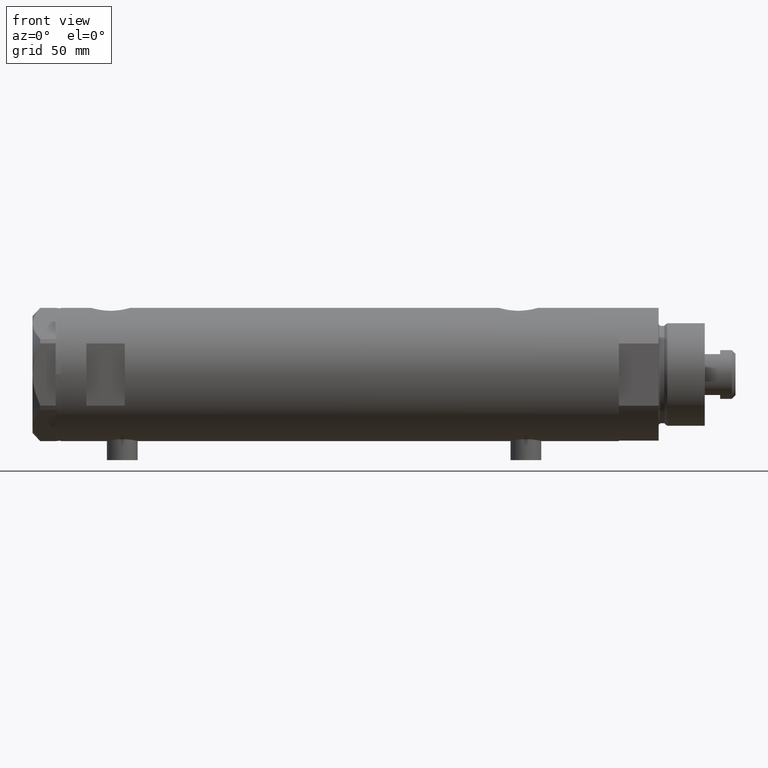
[diagram: clean part render]
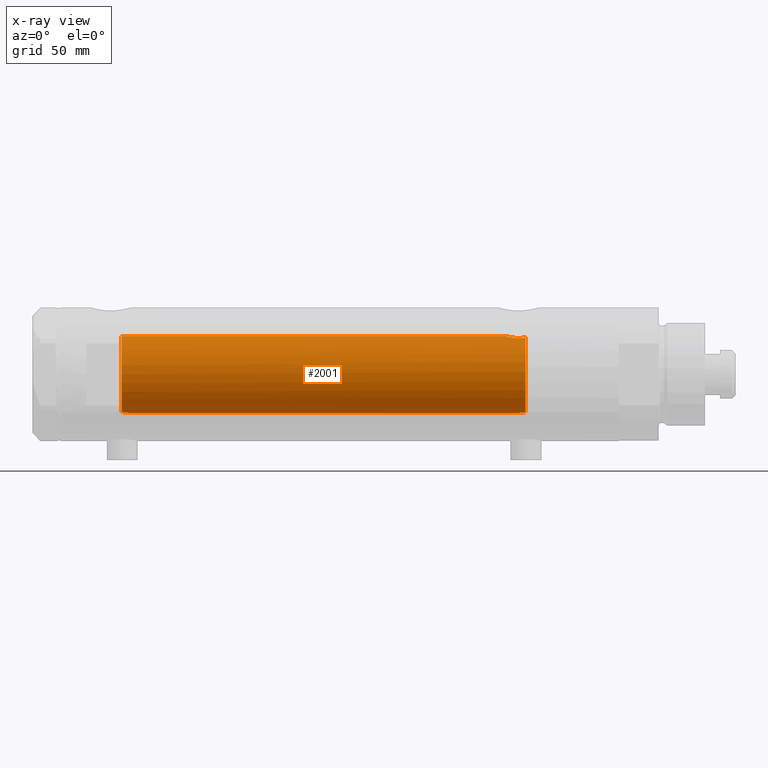
[diagram: x-ray — body ghosted, one internal face saturated and labeled with its STEP entity id]
A machine part, front view, then the same camera in x-ray: the body is ghosted and one INTERNAL B-rep face — a face not visible from any outside direction — is saturated and labeled: STEP entity #2001.
In plain terms, the highlighted cylindrical surface (partial cylindrical patch) has radius 15 mm, axis along (1, 0, -0).
Its self-contained STEP definition (entity closure, byte-faithful):
#39 = VERTEX_POINT ( 'NONE', #2394 ) ;
#60 = CARTESIAN_POINT ( 'NONE',  ( -15.00000000000000000, 0.000000000000000000, -70.15000000000000568 ) ) ;
#69 = CARTESIAN_POINT ( 'NONE',  ( -14.79155164274526157, -2.491987158875416775, 85.15000000000000568 ) ) ;
#105 = CARTESIAN_POINT ( 'NONE',  ( -14.95581892566389470, -1.161262481484110154, 82.72937042154403287 ) ) ;
#111 = VERTEX_POINT ( 'NONE', #60 ) ;
#131 = ORIENTED_EDGE ( 'NONE', *, *, #1992, .F. ) ;
#179 = B_SPLINE_CURVE_WITH_KNOTS ( 'NONE', 3,
 ( #4198, #2624, #3410, #5015, #2674, #4276, #3882, #292, #1899, #3019, #3492, #4626, #1505, #1845, #3436, #2808, #4773, #3172, #3226, #4430, #3130, #3589, #4332, #1564, #4824, #1183, #1231, #5175, #1924, #741 ),
 .UNSPECIFIED., .F., .F.,
 ( 4, 2, 2, 2, 2, 2, 2, 2, 2, 2, 2, 2, 2, 2, 4 ),
 ( 0.004672505804584295430, 0.005337629501999315365, 0.006002753199414335300, 0.006667876896829355235, 0.007333000594244375170, 0.007998124291659395105, 0.008663247989074415040, 0.009328371686489433240, 0.009993495383904454910, 0.01132374277873445662, 0.01265399017356445832, 0.01331911387097945050, 0.01398423756839444268, 0.01464936126580943312, 0.01531448496322442530 ),
 .UNSPECIFIED. ) ;
#212 = CARTESIAN_POINT ( 'NONE',  ( -14.91288509639097271, -1.618377549727019415, -70.73790984008952876 ) ) ;
#232 = CARTESIAN_POINT ( 'NONE',  ( 0.000000000000000000, 0.000000000000000000, 85.15000000000000568 ) ) ;
#239 = EDGE_CURVE ( 'NONE', #111, #4530, #1813, .T. ) ;
#279 = CARTESIAN_POINT ( 'NONE',  ( 14.92029983160078466, -1.555365312915180098, 84.83609703141414116 ) ) ;
#292 = CARTESIAN_POINT ( 'NONE',  ( 14.20819413761016037, -4.809312895991457282, -70.51713251522167525 ) ) ;
#369 = ORIENTED_EDGE ( 'NONE', *, *, #239, .F. ) ;
#423 = CARTESIAN_POINT ( 'NONE',  ( 14.82638779339053769, -2.275571356824481750, 85.15000000000000568 ) ) ;
#426 = AXIS2_PLACEMENT_3D ( 'NONE', #3646, #2464, #4516 ) ;
#562 = CARTESIAN_POINT ( 'NONE',  ( -14.83575030094399771, -2.214690538106026452, -71.47938890130201628 ) ) ;
#583 = CARTESIAN_POINT ( 'NONE',  ( -14.98749134158486740, -0.6320459414166045287, -70.22599747929442060 ) ) ;
#741 = CARTESIAN_POINT ( 'NONE',  ( 15.00000000000000000, 5.959273473684245944E-16, -64.88500000000000512 ) ) ;
#763 = VECTOR ( 'NONE', #2367, 1000.000000000000000 ) ;
#773 = CARTESIAN_POINT ( 'NONE',  ( 15.00000000000000000, 1.836970198721029589E-15, 108.9499999999999886 ) ) ;
#780 = VERTEX_POINT ( 'NONE', #3903 ) ;
#871 = CARTESIAN_POINT ( 'NONE',  ( -14.90147761301467710, -1.720422196468680776, 83.12794212931564175 ) ) ;
#894 = FACE_OUTER_BOUND ( 'NONE', #2984, .T. ) ;
#919 = CARTESIAN_POINT ( 'NONE',  ( -14.79723843696374885, -2.458094276708257642, 84.46231574989086255 ) ) ;
#1003 = CARTESIAN_POINT ( 'NONE',  ( -14.79053751558745589, -2.497999199359367761, -72.54999999999999716 ) ) ;
#1051 = DIRECTION ( 'NONE',  ( 0.000000000000000000, 0.000000000000000000, 1.000000000000000000 ) ) ;
#1062 = CARTESIAN_POINT ( 'NONE',  ( 15.00000000000000000, 0.000000000000000000, 84.58500000000000796 ) ) ;
#1183 = CARTESIAN_POINT ( 'NONE',  ( 14.96064712090283955, -1.106639041422192049, -65.00738179736373468 ) ) ;
#1194 = EDGE_CURVE ( 'NONE', #39, #111, #4222, .T. ) ;
#1211 = CARTESIAN_POINT ( 'NONE',  ( -14.94313933514151493, -1.312299271472202600, 82.81526966946924517 ) ) ;
#1231 = CARTESIAN_POINT ( 'NONE',  ( 14.97537530859972321, -0.8874117095427768165, -64.96137464055831856 ) ) ;
#1258 = CARTESIAN_POINT ( 'NONE',  ( -14.99999999999999822, -0.1716226368084284859, 82.45000000000001705 ) ) ;
#1292 = ORIENTED_EDGE ( 'NONE', *, *, #3297, .F. ) ;
#1381 = CARTESIAN_POINT ( 'NONE',  ( -14.99740058099026108, -0.3199290537848277771, -70.16546469274585718 ) ) ;
#1397 = DIRECTION ( 'NONE',  ( -0.000000000000000000, -0.000000000000000000, -1.000000000000000000 ) ) ;
#1402 = CARTESIAN_POINT ( 'NONE',  ( -14.80570803900864085, -2.410056876876593979, -71.91354637206102041 ) ) ;
#1439 = AXIS2_PLACEMENT_3D ( 'NONE', #3111, #4710, #1515 ) ;
#1505 = CARTESIAN_POINT ( 'NONE',  ( 14.20926245015525957, -4.806160851464704287, -68.96377327795615031 ) ) ;
#1515 = DIRECTION ( 'NONE',  ( -1.000000000000000000, 0.000000000000000000, 0.000000000000000000 ) ) ;
#1564 = CARTESIAN_POINT ( 'NONE',  ( 14.90017778876745247, -1.739641523727897710, -65.20130925695124802 ) ) ;
#1598 = VECTOR ( 'NONE', #1397, 1000.000000000000000 ) ;
#1611 = CARTESIAN_POINT ( 'NONE',  ( -14.78989771875220072, -2.501882951377193187, 84.80631597653685105 ) ) ;
#1748 = CARTESIAN_POINT ( 'NONE',  ( -14.92627313122706134, -1.491421694539947440, -70.63730514635739155 ) ) ;
#1813 = B_SPLINE_CURVE_WITH_KNOTS ( 'NONE', 3,
 ( #4524, #3809, #1381, #583, #3370, #3731, #2120, #1748, #212, #2995, #3710, #5018, #562, #1402, #1826, #1003 ),
 .UNSPECIFIED., .F., .F.,
 ( 4, 2, 2, 2, 2, 2, 2, 4 ),
 ( 0.000000000000000000, 0.0004769863284873165476, 0.0009539726569746333120, 0.001430958985461950076, 0.001907945313949267058, 0.002384931642436583822, 0.002861917970923900153, 0.003815890627898496819 ),
 .UNSPECIFIED. ) ;
#1826 = CARTESIAN_POINT ( 'NONE',  ( -14.79268570220017942, -2.485279885960850699, -72.23227165314102649 ) ) ;
#1845 = CARTESIAN_POINT ( 'NONE',  ( 14.23984499268011561, -4.714778477509576682, -68.53008258614765680 ) ) ;
#1888 = CARTESIAN_POINT ( 'NONE',  ( 14.87720562886503828, -1.924385875533403789, 84.97741675737692901 ) ) ;
#1899 = CARTESIAN_POINT ( 'NONE',  ( 14.19797987272029793, -4.839174951492910992, -70.29741451501413962 ) ) ;
#1917 = ORIENTED_EDGE ( 'NONE', *, *, #1194, .F. ) ;
#1924 = CARTESIAN_POINT ( 'NONE',  ( 15.00000000000000888, -0.2216692655473423146, -64.88500000000003354 ) ) ;
#1992 = EDGE_CURVE ( 'NONE', #4175, #39, #3804, .T. ) ;
#2001 = ADVANCED_FACE ( 'NONE', ( #894 ), #2833, .F. ) ;
#2120 = CARTESIAN_POINT ( 'NONE',  ( -14.95054302956255654, -1.224431043437672617, -70.46458290830103977 ) ) ;
#2154 = CARTESIAN_POINT ( 'NONE',  ( 15.00000000000000000, 5.959273473684245944E-16, -64.88500000000000512 ) ) ;
#2276 = CARTESIAN_POINT ( 'NONE',  ( 14.93900636919600089, -1.364886281976675386, 84.77622504971314754 ) ) ;
#2303 = CARTESIAN_POINT ( 'NONE',  ( 14.82638779339053769, -2.275571356824481750, 85.15000000000000568 ) ) ;
#2367 = DIRECTION ( 'NONE',  ( -0.000000000000000000, -0.000000000000000000, -1.000000000000000000 ) ) ;
#2394 = CARTESIAN_POINT ( 'NONE',  ( -15.00000000000000000, 3.061618116097013428E-16, 82.44999999999998863 ) ) ;
#2407 = CARTESIAN_POINT ( 'NONE',  ( -14.83314878996174357, -2.232849285003160489, 83.81256080311605672 ) ) ;
#2438 = CARTESIAN_POINT ( 'NONE',  ( -14.99695275358353719, -0.3460123648701097787, 82.46810396824247391 ) ) ;
#2464 = DIRECTION ( 'NONE',  ( -0.000000000000000000, -0.000000000000000000, -1.000000000000000000 ) ) ;
#2485 = VERTEX_POINT ( 'NONE', #3478 ) ;
#2516 = CARTESIAN_POINT ( 'NONE',  ( -14.80379558280398200, -2.418854260473059181, 84.29535450491661663 ) ) ;
#2593 = CARTESIAN_POINT ( 'NONE',  ( -15.00000000000000000, 0.000000000000000000, 108.9499999999999886 ) ) ;
#2624 = CARTESIAN_POINT ( 'NONE',  ( 14.42775250319759728, -4.105775281508738495, -72.36911445102909113 ) ) ;
#2659 = CARTESIAN_POINT ( 'NONE',  ( 14.98404828787190901, -0.7909490205761858794, 84.63356230794190083 ) ) ;
#2660 = EDGE_CURVE ( 'NONE', #780, #4530, #4687, .T. ) ;
#2674 = CARTESIAN_POINT ( 'NONE',  ( 14.30602371879160728, -4.510400617436905790, -71.58665028800270136 ) ) ;
#2762 = LINE ( 'NONE', #773, #763 ) ;
#2808 = CARTESIAN_POINT ( 'NONE',  ( 14.30772250772360366, -4.505024017690372418, -67.90010806953213773 ) ) ;
#2833 = CYLINDRICAL_SURFACE ( 'NONE', #426, 15.00000000000000000 ) ;
#2886 = CARTESIAN_POINT ( 'NONE',  ( -14.79155164274526157, -2.491987158875416775, 85.15000000000000568 ) ) ;
#2911 = CARTESIAN_POINT ( 'NONE',  ( -15.00000000000000000, 3.061618116097013428E-16, 82.44999999999998863 ) ) ;
#2984 = EDGE_LOOP ( 'NONE', ( #4850, #4965, #1292, #4371, #369, #1917, #131, #3276 ) ) ;
#2995 = CARTESIAN_POINT ( 'NONE',  ( -14.88625129008227077, -1.847379311388074097, -70.95812992433161526 ) ) ;
#3019 = CARTESIAN_POINT ( 'NONE',  ( 14.18781489734108270, -4.868896704194244585, -69.85545969036061820 ) ) ;
#3111 = CARTESIAN_POINT ( 'NONE',  ( 0.000000000000000000, 0.000000000000000000, -72.54999999999999716 ) ) ;
#3130 = CARTESIAN_POINT ( 'NONE',  ( 14.72015646623406049, -2.909233045280597896, -65.82572079632734585 ) ) ;
#3172 = CARTESIAN_POINT ( 'NONE',  ( 14.42796883436190392, -4.108435602805834641, -67.10726922759032220 ) ) ;
#3204 = CARTESIAN_POINT ( 'NONE',  ( -14.78924132900106692, -2.505700361584517921, 84.97913437470931797 ) ) ;
#3226 = CARTESIAN_POINT ( 'NONE',  ( 14.49994286062941384, -3.853373987417223034, -66.74743896782911179 ) ) ;
#3228 = CARTESIAN_POINT ( 'NONE',  ( -14.82167156606024427, -2.306788152106017176, 83.97115114601639618 ) ) ;
#3231 = EDGE_CURVE ( 'NONE', #4175, #3779, #4356, .T. ) ;
#3276 = ORIENTED_EDGE ( 'NONE', *, *, #3231, .T. ) ;
#3281 = CARTESIAN_POINT ( 'NONE',  ( -14.97699254061833152, -0.8454257663520229338, 82.59097868826833633 ) ) ;
#3297 = EDGE_CURVE ( 'NONE', #780, #3539, #179, .T. ) ;
#3370 = CARTESIAN_POINT ( 'NONE',  ( -14.98007298506453822, -0.7870736506658174703, -70.27174868555717069 ) ) ;
#3391 = DIRECTION ( 'NONE',  ( 1.000000000000000000, 0.000000000000000000, 0.000000000000000000 ) ) ;
#3410 = CARTESIAN_POINT ( 'NONE',  ( 14.39424372609267877, -4.221002267729139668, -72.17893131093291004 ) ) ;
#3436 = CARTESIAN_POINT ( 'NONE',  ( 14.25977760983849763, -4.654557688538883298, -68.31736805897654108 ) ) ;
#3478 = CARTESIAN_POINT ( 'NONE',  ( 15.00000000000000000, 0.000000000000000000, 84.58500000000000796 ) ) ;
#3492 = CARTESIAN_POINT ( 'NONE',  ( 14.18786347641750112, -4.868757996482119488, -69.63322300400297138 ) ) ;
#3504 = CARTESIAN_POINT ( 'NONE',  ( -14.79053751558745589, -2.497999199359367761, -72.54999999999999716 ) ) ;
#3539 = VERTEX_POINT ( 'NONE', #2154 ) ;
#3589 = CARTESIAN_POINT ( 'NONE',  ( 14.81710879718118079, -2.343063746046463613, -65.48067662538953471 ) ) ;
#3646 = CARTESIAN_POINT ( 'NONE',  ( 0.000000000000000000, 0.000000000000000000, 108.9499999999999886 ) ) ;
#3688 = EDGE_CURVE ( 'NONE', #2485, #3539, #2762, .T. ) ;
#3710 = CARTESIAN_POINT ( 'NONE',  ( -14.87290636797879628, -1.950714596786584654, -71.07831246618854948 ) ) ;
#3731 = CARTESIAN_POINT ( 'NONE',  ( -14.96154495298569387, -1.083625483837070025, -70.39138979525010598 ) ) ;
#3779 = VERTEX_POINT ( 'NONE', #423 ) ;
#3804 = B_SPLINE_CURVE_WITH_KNOTS ( 'NONE', 3,
 ( #2886, #3204, #1611, #919, #2516, #3228, #2407, #4826, #4803, #871, #4488, #1211, #105, #3281, #4008, #2438, #1258, #2911 ),
 .UNSPECIFIED., .F., .F.,
 ( 4, 2, 2, 2, 2, 2, 2, 2, 4 ),
 ( 0.003715686714229614416, 0.004229951999599971396, 0.004744217284970328810, 0.005258482570340686224, 0.005772747855711043638, 0.006287013141081401052, 0.006801278426451758466, 0.007315543711822115880, 0.007829808997192473294 ),
 .UNSPECIFIED. ) ;
#3809 = CARTESIAN_POINT ( 'NONE',  ( -14.99999999999999822, -0.1613061104920442967, -70.15000000000000568 ) ) ;
#3868 = CARTESIAN_POINT ( 'NONE',  ( 15.00000000000000355, -0.3999014018875933218, 84.58499999999999375 ) ) ;
#3882 = CARTESIAN_POINT ( 'NONE',  ( 14.23846660849503110, -4.718934182878724570, -70.95401121469809880 ) ) ;
#3903 = CARTESIAN_POINT ( 'NONE',  ( 14.46277203719950677, -3.978470183374508640, -72.54999999999999716 ) ) ;
#3934 = AXIS2_PLACEMENT_3D ( 'NONE', #232, #1051, #3391 ) ;
#4008 = CARTESIAN_POINT ( 'NONE',  ( -14.98541608527169977, -0.6823644196029188258, 82.53879464417549627 ) ) ;
#4175 = VERTEX_POINT ( 'NONE', #69 ) ;
#4196 = B_SPLINE_CURVE_WITH_KNOTS ( 'NONE', 3,
 ( #1062, #3868, #2659, #2276, #279, #1888, #4905, #2303 ),
 .UNSPECIFIED., .F., .F.,
 ( 4, 2, 2, 4 ),
 ( 0.000000000000000000, 0.001182100180564268996, 0.001773150270846398724, 0.002364200361128528886 ),
 .UNSPECIFIED. ) ;
#4198 = CARTESIAN_POINT ( 'NONE',  ( 14.46277203719950677, -3.978470183374508640, -72.54999999999999716 ) ) ;
#4222 = LINE ( 'NONE', #2593, #1598 ) ;
#4276 = CARTESIAN_POINT ( 'NONE',  ( 14.25856516724843637, -4.658255869285517825, -71.17044016644935311 ) ) ;
#4332 = CARTESIAN_POINT ( 'NONE',  ( 14.84733308118440398, -2.144376633039211999, -65.37751912952717248 ) ) ;
#4356 = CIRCLE ( 'NONE', #3934, 15.00000000000000000 ) ;
#4367 = EDGE_CURVE ( 'NONE', #2485, #3779, #4196, .T. ) ;
#4371 = ORIENTED_EDGE ( 'NONE', *, *, #2660, .T. ) ;
#4430 = CARTESIAN_POINT ( 'NONE',  ( 14.64727859494137263, -3.248701865452405801, -66.10174013696655493 ) ) ;
#4488 = CARTESIAN_POINT ( 'NONE',  ( -14.91608554980932233, -1.590576762727821558, 83.01369720243327777 ) ) ;
#4516 = DIRECTION ( 'NONE',  ( -1.000000000000000000, 0.000000000000000000, 0.000000000000000000 ) ) ;
#4524 = CARTESIAN_POINT ( 'NONE',  ( -15.00000000000000000, 0.000000000000000000, -70.15000000000000568 ) ) ;
#4530 = VERTEX_POINT ( 'NONE', #3504 ) ;
#4626 = CARTESIAN_POINT ( 'NONE',  ( 14.19858338301463085, -4.837406781463694294, -69.18614104090498529 ) ) ;
#4687 = CIRCLE ( 'NONE', #1439, 15.00000000000000000 ) ;
#4710 = DIRECTION ( 'NONE',  ( 0.000000000000000000, 0.000000000000000000, -1.000000000000000000 ) ) ;
#4773 = CARTESIAN_POINT ( 'NONE',  ( 14.33594561531104006, -4.414979644548150617, -67.69453393419244946 ) ) ;
#4803 = CARTESIAN_POINT ( 'NONE',  ( -14.87260732106556382, -1.954338522023922220, 83.38146298750766050 ) ) ;
#4824 = CARTESIAN_POINT ( 'NONE',  ( 14.92307637240704032, -1.532123959568890692, -65.12726557582080034 ) ) ;
#4826 = CARTESIAN_POINT ( 'NONE',  ( -14.85859683553260879, -2.056701007386124491, 83.51843972450893716 ) ) ;
#4850 = ORIENTED_EDGE ( 'NONE', *, *, #4367, .F. ) ;
#4905 = CARTESIAN_POINT ( 'NONE',  ( 14.85289483991917692, -2.102865829523694607, 85.05860377881607803 ) ) ;
#4965 = ORIENTED_EDGE ( 'NONE', *, *, #3688, .T. ) ;
#5015 = CARTESIAN_POINT ( 'NONE',  ( 14.33349657381506148, -4.422893686125038748, -71.78827841538880250 ) ) ;
#5018 = CARTESIAN_POINT ( 'NONE',  ( -14.84760220014584498, -2.134792770974425213, -71.33921818480344257 ) ) ;
#5175 = CARTESIAN_POINT ( 'NONE',  ( 14.99508877558422881, -0.4434836953032569862, -64.90007684727665094 ) ) ;